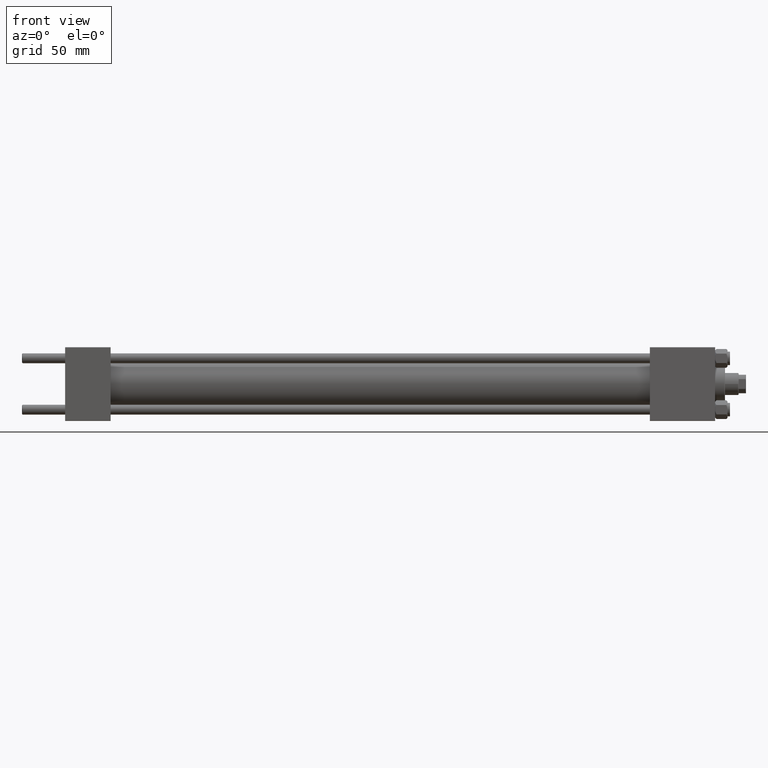
[diagram: clean part render]
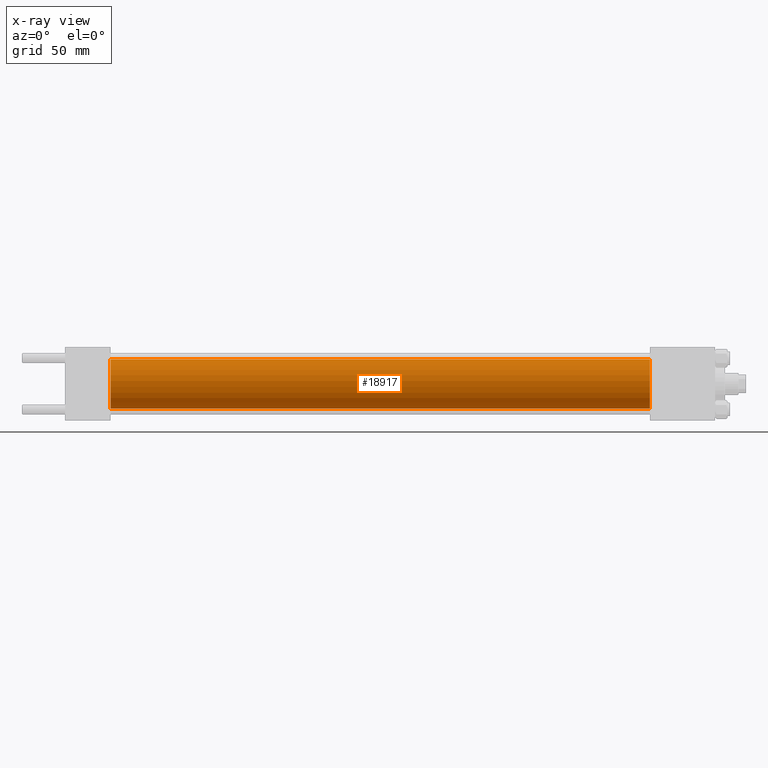
[diagram: x-ray — body ghosted, one internal face saturated and labeled with its STEP entity id]
A machine part, front view, then the same camera in x-ray: the body is ghosted and one INTERNAL B-rep face — a face not visible from any outside direction — is saturated and labeled: STEP entity #18917.
In plain terms, the highlighted cylindrical surface (edge-blend (fillet) strip) has radius 20 mm, axis along (-1, -0, -0).
Its self-contained STEP definition (entity closure, byte-faithful):
#1199 = CARTESIAN_POINT ( 'NONE',  ( 475.0000000000000000, 2.449293598294706513E-15, -20.00000000000000000 ) ) ;
#2012 = CIRCLE ( 'NONE', #23007, 20.00000000000000000 ) ;
#4304 = DIRECTION ( 'NONE',  ( -1.000000000000000000, -0.000000000000000000, -0.000000000000000000 ) ) ;
#4469 = EDGE_CURVE ( 'NONE', #19779, #13882, #7865, .T. ) ;
#4848 = CARTESIAN_POINT ( 'NONE',  ( 475.0000000000000000, 0.000000000000000000, 0.000000000000000000 ) ) ;
#6977 = VERTEX_POINT ( 'NONE', #30043 ) ;
#7284 = ORIENTED_EDGE ( 'NONE', *, *, #30113, .F. ) ;
#7550 = EDGE_LOOP ( 'NONE', ( #30432, #35287, #7284, #35880 ) ) ;
#7865 = LINE ( 'NONE', #8113, #8616 ) ;
#8113 = CARTESIAN_POINT ( 'NONE',  ( 475.0000000000000000, 0.000000000000000000, 20.00000000000000000 ) ) ;
#8616 = VECTOR ( 'NONE', #4304, 1000.000000000000000 ) ;
#9391 = CYLINDRICAL_SURFACE ( 'NONE', #25815, 20.00000000000000000 ) ;
#13882 = VERTEX_POINT ( 'NONE', #24309 ) ;
#15221 = DIRECTION ( 'NONE',  ( 1.000000000000000000, 0.000000000000000000, 0.000000000000000000 ) ) ;
#16946 = DIRECTION ( 'NONE',  ( -1.000000000000000000, -0.000000000000000000, -0.000000000000000000 ) ) ;
#17293 = CARTESIAN_POINT ( 'NONE',  ( 37.00000000000000000, 2.449293598294706513E-15, -20.00000000000000000 ) ) ;
#18917 = ADVANCED_FACE ( 'NONE', ( #43415 ), #9391, .F. ) ;
#19779 = VERTEX_POINT ( 'NONE', #46158 ) ;
#21716 = CIRCLE ( 'NONE', #36157, 20.00000000000000000 ) ;
#23007 = AXIS2_PLACEMENT_3D ( 'NONE', #29970, #29471, #25453 ) ;
#24221 = VECTOR ( 'NONE', #48105, 1000.000000000000000 ) ;
#24309 = CARTESIAN_POINT ( 'NONE',  ( 37.00000000000000000, 0.000000000000000000, 20.00000000000000000 ) ) ;
#25453 = DIRECTION ( 'NONE',  ( 0.000000000000000000, 0.000000000000000000, -1.000000000000000000 ) ) ;
#25815 = AXIS2_PLACEMENT_3D ( 'NONE', #4848, #16946, #44846 ) ;
#29471 = DIRECTION ( 'NONE',  ( 1.000000000000000000, 0.000000000000000000, 0.000000000000000000 ) ) ;
#29970 = CARTESIAN_POINT ( 'NONE',  ( 475.0000000000000000, 0.000000000000000000, 0.000000000000000000 ) ) ;
#30043 = CARTESIAN_POINT ( 'NONE',  ( 475.0000000000000000, 2.449293598294706513E-15, -20.00000000000000000 ) ) ;
#30113 = EDGE_CURVE ( 'NONE', #13882, #33445, #21716, .T. ) ;
#30432 = ORIENTED_EDGE ( 'NONE', *, *, #48960, .T. ) ;
#30594 = DIRECTION ( 'NONE',  ( 0.000000000000000000, 0.000000000000000000, -1.000000000000000000 ) ) ;
#33445 = VERTEX_POINT ( 'NONE', #17293 ) ;
#35287 = ORIENTED_EDGE ( 'NONE', *, *, #37156, .T. ) ;
#35880 = ORIENTED_EDGE ( 'NONE', *, *, #4469, .F. ) ;
#36011 = LINE ( 'NONE', #1199, #24221 ) ;
#36157 = AXIS2_PLACEMENT_3D ( 'NONE', #42424, #15221, #30594 ) ;
#37156 = EDGE_CURVE ( 'NONE', #6977, #33445, #36011, .T. ) ;
#42424 = CARTESIAN_POINT ( 'NONE',  ( 37.00000000000000000, 0.000000000000000000, 0.000000000000000000 ) ) ;
#43415 = FACE_OUTER_BOUND ( 'NONE', #7550, .T. ) ;
#44846 = DIRECTION ( 'NONE',  ( 0.000000000000000000, 0.000000000000000000, 1.000000000000000000 ) ) ;
#46158 = CARTESIAN_POINT ( 'NONE',  ( 475.0000000000000000, 0.000000000000000000, 20.00000000000000000 ) ) ;
#48105 = DIRECTION ( 'NONE',  ( -1.000000000000000000, -0.000000000000000000, -0.000000000000000000 ) ) ;
#48960 = EDGE_CURVE ( 'NONE', #19779, #6977, #2012, .T. ) ;